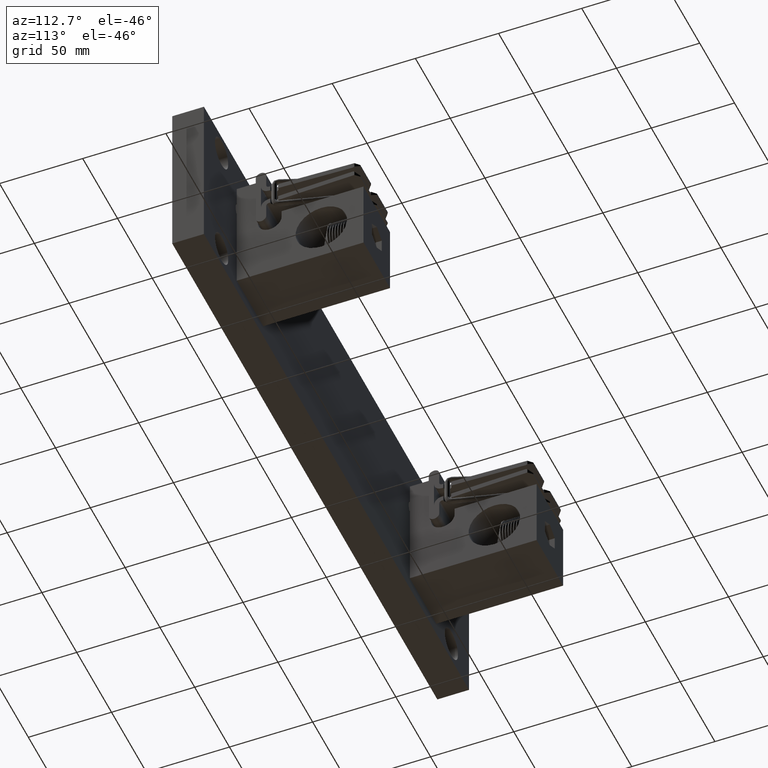
[diagram: clean part render]
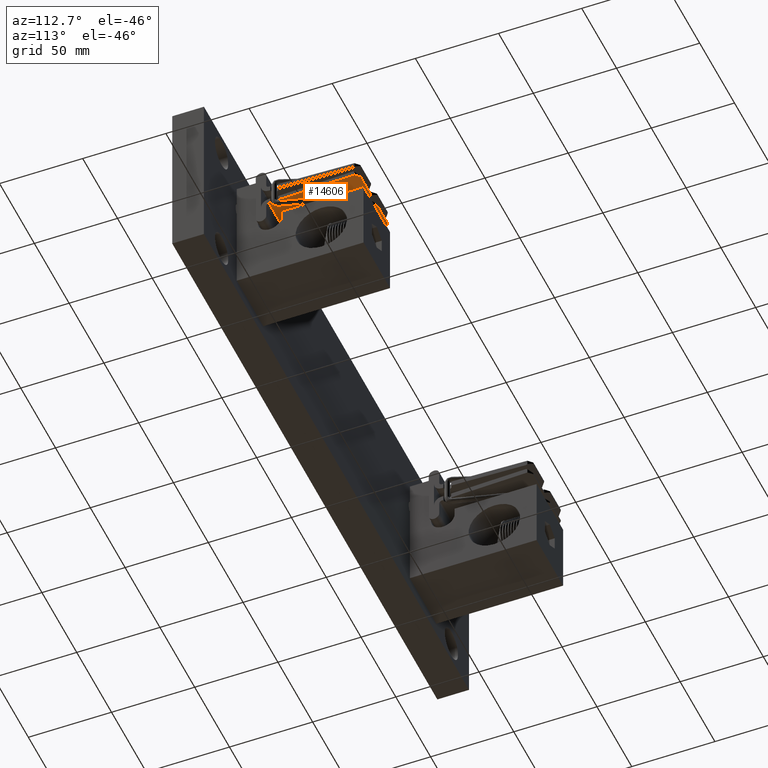
[diagram: same view with one face highlighted and labeled with its STEP entity id]
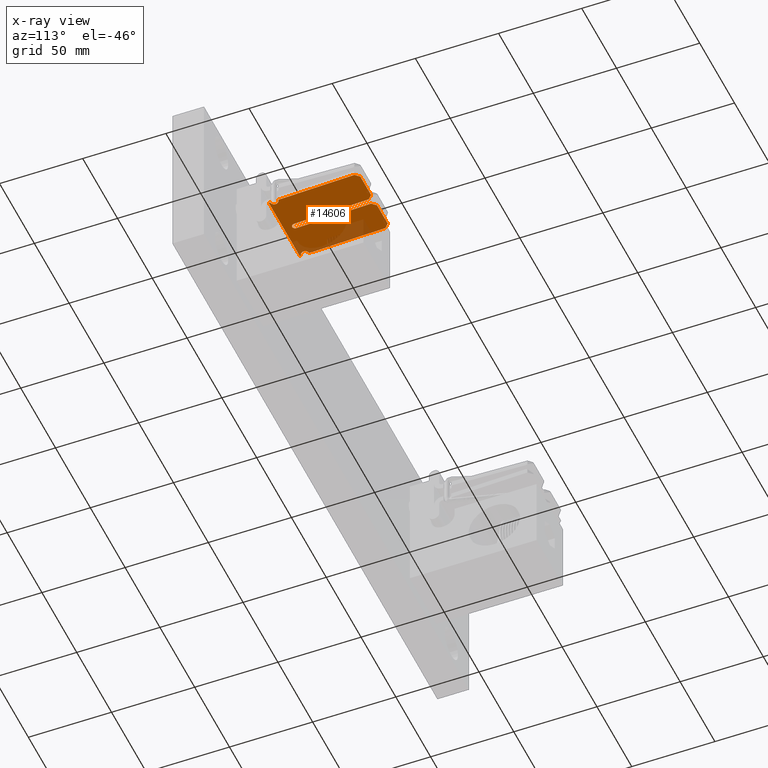
[diagram: x-ray of the same camera — body ghosted, the highlighted face saturated]
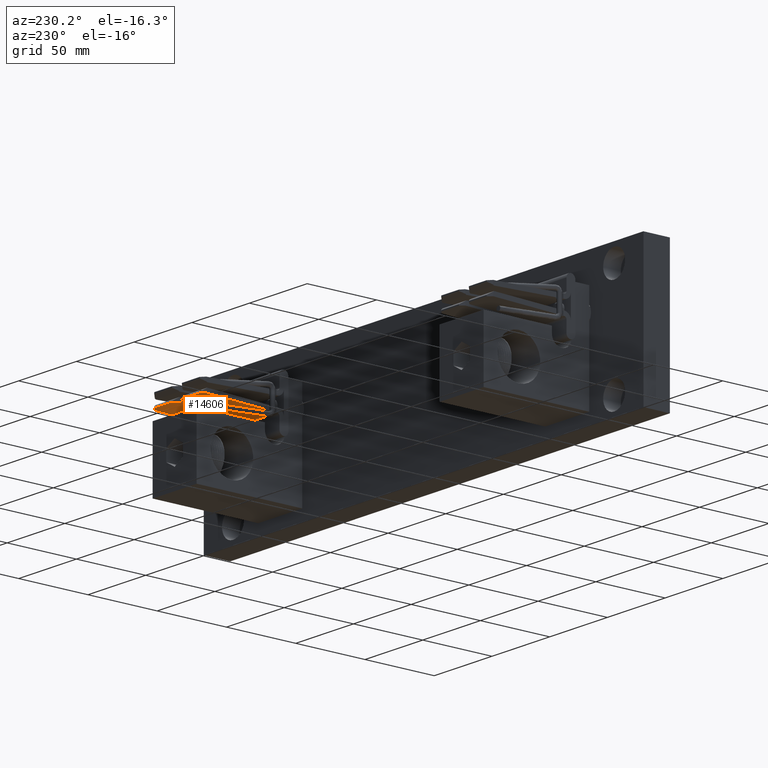
[diagram: same view with one face highlighted and labeled with its STEP entity id]
A machine part, auxiliary view. The second image highlights one B-rep face of the part: STEP entity #14606.
The next image is the same camera in x-ray: the body ghosted, the highlighted face saturated — about 14% of this face is hidden behind the body in this view.
A second angle (auxiliary view) of the same face is appended — the face is thin or edge-on in the first view.
In plain terms, the highlighted planar face has unit normal (0, -0.0353, 0.9994).
Its self-contained STEP definition (entity closure, byte-faithful):
#91 = CARTESIAN_POINT ( 'NONE',  ( 8.915000000000000900, 2.435000000000000100, -0.1820390935949554900 ) ) ;
#249 = CARTESIAN_POINT ( 'NONE',  ( 10.66499999999999900, 0.5309999999999999200, -0.2492637983786739900 ) ) ;
#251 = VECTOR ( 'NONE', #339, 39.37007874015748100 ) ;
#322 = CARTESIAN_POINT ( 'NONE',  ( 9.730957987920044500, 2.325042012079955500, -0.1859213904838928600 ) ) ;
#339 = DIRECTION ( 'NONE',  ( 1.232510108407271800E-016, 0.9993772867383173800, 0.03528510665364335800 ) ) ;
#348 = LINE ( 'NONE', #19431, #9925 ) ;
#374 = VECTOR ( 'NONE', #5624, 39.37007874015748100 ) ;
#898 = CARTESIAN_POINT ( 'NONE',  ( 9.721000000000000100, 0.5659999999999998400, -0.2480280501289732500 ) ) ;
#1201 = VERTEX_POINT ( 'NONE', #15070 ) ;
#1233 = ORIENTED_EDGE ( 'NONE', *, *, #28653, .T. ) ;
#1432 = DIRECTION ( 'NONE',  ( -1.000000000000000000, -0.0000000000000000000, -0.0000000000000000000 ) ) ;
#1539 = DIRECTION ( 'NONE',  ( 1.232510108407271800E-016, -0.9993772867383173800, -0.03528510665364335800 ) ) ;
#1713 = CARTESIAN_POINT ( 'NONE',  ( 9.859000000000000000, 1.317295073958034900, -0.2215020051960474000 ) ) ;
#1815 = LINE ( 'NONE', #322, #25367 ) ;
#2115 = CARTESIAN_POINT ( 'NONE',  ( 9.721000000000000100, 1.682704926041965300, -0.2086004456207299100 ) ) ;
#2417 = VERTEX_POINT ( 'NONE', #24184 ) ;
#2496 = EDGE_CURVE ( 'NONE', #20857, #13186, #26738, .T. ) ;
#2908 = ORIENTED_EDGE ( 'NONE', *, *, #25842, .T. ) ;
#3141 = EDGE_CURVE ( 'NONE', #9923, #5137, #11968, .T. ) ;
#3354 = DIRECTION ( 'NONE',  ( 0.0000000000000000000, -0.03528510665364335100, 0.9993772867383173800 ) ) ;
#3364 = VECTOR ( 'NONE', #22917, 39.37007874015748900 ) ;
#3431 = EDGE_CURVE ( 'NONE', #9980, #7583, #10923, .T. ) ;
#3503 = VERTEX_POINT ( 'NONE', #19504 ) ;
#4014 = CARTESIAN_POINT ( 'NONE',  ( 10.05930657065706600, 1.392942478079820300, -0.2188311152749646300 ) ) ;
#4080 = LINE ( 'NONE', #15090, #21317 ) ;
#4096 = LINE ( 'NONE', #5086, #3364 ) ;
#4123 = VECTOR ( 'NONE', #26891, 39.37007874015748100 ) ;
#4207 = ORIENTED_EDGE ( 'NONE', *, *, #9919, .T. ) ;
#4304 = AXIS2_PLACEMENT_3D ( 'NONE', #16828, #3354, #19125 ) ;
#4495 = LINE ( 'NONE', #8940, #4123 ) ;
#4814 = CARTESIAN_POINT ( 'NONE',  ( 9.859000000000000000, 2.435000000000000100, -0.1820390935949554900 ) ) ;
#4841 = VERTEX_POINT ( 'NONE', #23548 ) ;
#5086 = CARTESIAN_POINT ( 'NONE',  ( 10.66499999999999900, 2.435000000000000100, -0.1820390935949554900 ) ) ;
#5137 = VERTEX_POINT ( 'NONE', #26261 ) ;
#5397 = CARTESIAN_POINT ( 'NONE',  ( 10.67286734575641600, 2.327132654243585700, -0.1858475759869084300 ) ) ;
#5408 = LINE ( 'NONE', #7905, #374 ) ;
#5624 = DIRECTION ( 'NONE',  ( -1.000000000000000000, -0.0000000000000000000, -0.0000000000000000000 ) ) ;
#5923 = CARTESIAN_POINT ( 'NONE',  ( 8.915000000000000900, 0.5309999999999999200, -0.2492637983786739900 ) ) ;
#5952 =( BOUNDED_CURVE ( )  B_SPLINE_CURVE ( 3, ( #18132, #17840, #6938, #22609 ),
 .UNSPECIFIED., .F., .T. ) 
 B_SPLINE_CURVE_WITH_KNOTS ( ( 4, 4 ),
 ( 0.3610990432154277400, 2.780493610374366000 ),
 .UNSPECIFIED. ) 
 CURVE ( )  GEOMETRIC_REPRESENTATION_ITEM ( )  RATIONAL_B_SPLINE_CURVE ( ( 1.000000000000000000, 0.5688684075780841000, 0.5688684075780841000, 1.000000000000000000 ) ) 
 REPRESENTATION_ITEM ( '' )  );
#6118 = ORIENTED_EDGE ( 'NONE', *, *, #8507, .T. ) ;
#6373 = EDGE_CURVE ( 'NONE', #1201, #2417, #1815, .T. ) ;
#6938 = CARTESIAN_POINT ( 'NONE',  ( 9.520693429342934200, 1.392942478079820500, -0.2188311152749646500 ) ) ;
#7103 = CARTESIAN_POINT ( 'NONE',  ( 10.66499999999999900, 0.3429999999999995800, -0.2559015318342092700 ) ) ;
#7240 = LINE ( 'NONE', #91, #20904 ) ;
#7583 = VERTEX_POINT ( 'NONE', #26361 ) ;
#7760 = VECTOR ( 'NONE', #7776, 39.37007874015748100 ) ;
#7776 = DIRECTION ( 'NONE',  ( 1.232510108407271800E-016, 0.9993772867383173800, 0.03528510665364335800 ) ) ;
#7822 = VERTEX_POINT ( 'NONE', #19969 ) ;
#7905 = CARTESIAN_POINT ( 'NONE',  ( 10.66499999999999900, 2.435000000000000100, -0.1820390935949554900 ) ) ;
#7960 = ORIENTED_EDGE ( 'NONE', *, *, #18404, .T. ) ;
#8020 = VECTOR ( 'NONE', #19040, 39.37007874015748900 ) ;
#8209 =( BOUNDED_CURVE ( )  B_SPLINE_CURVE ( 3, ( #1713, #4014, #22001, #8598 ),
 .UNSPECIFIED., .F., .T. ) 
 B_SPLINE_CURVE_WITH_KNOTS ( ( 4, 4 ),
 ( 3.502691696805220600, 5.922086263964159200 ),
 .UNSPECIFIED. ) 
 CURVE ( )  GEOMETRIC_REPRESENTATION_ITEM ( )  RATIONAL_B_SPLINE_CURVE ( ( 1.000000000000000000, 0.5688684075780839900, 0.5688684075780839900, 1.000000000000000000 ) ) 
 REPRESENTATION_ITEM ( '' )  );
#8507 = EDGE_CURVE ( 'NONE', #7822, #25895, #7240, .T. ) ;
#8598 = CARTESIAN_POINT ( 'NONE',  ( 9.859000000000000000, 1.682704926041965500, -0.2086004456207299400 ) ) ;
#8940 = CARTESIAN_POINT ( 'NONE',  ( 9.721000000000000100, 2.435000000000000100, -0.1820390935949554900 ) ) ;
#9519 = EDGE_CURVE ( 'NONE', #25895, #18630, #27535, .T. ) ;
#9598 = EDGE_CURVE ( 'NONE', #25338, #13186, #22167, .T. ) ;
#9801 = ORIENTED_EDGE ( 'NONE', *, *, #6373, .T. ) ;
#9833 = VERTEX_POINT ( 'NONE', #24638 ) ;
#9919 = EDGE_CURVE ( 'NONE', #5137, #14231, #27887, .T. ) ;
#9923 = VERTEX_POINT ( 'NONE', #898 ) ;
#9925 = VECTOR ( 'NONE', #10424, 39.37007874015748100 ) ;
#9980 = VERTEX_POINT ( 'NONE', #12291 ) ;
#10424 = DIRECTION ( 'NONE',  ( -1.000000000000000000, -0.0000000000000000000, -0.0000000000000000000 ) ) ;
#10536 = LINE ( 'NONE', #17907, #11222 ) ;
#10695 = VECTOR ( 'NONE', #25755, 39.37007874015748900 ) ;
#10888 = CARTESIAN_POINT ( 'NONE',  ( 8.915000000000000900, 0.5309999999999999200, -0.2492637983786739900 ) ) ;
#10923 = LINE ( 'NONE', #21566, #8020 ) ;
#11073 = ORIENTED_EDGE ( 'NONE', *, *, #13893, .T. ) ;
#11222 = VECTOR ( 'NONE', #26761, 39.37007874015748100 ) ;
#11263 = ORIENTED_EDGE ( 'NONE', *, *, #15824, .T. ) ;
#11968 =( BOUNDED_CURVE ( )  B_SPLINE_CURVE ( 3, ( #19506, #13238, #19885, #12564 ),
 .UNSPECIFIED., .F., .T. ) 
 B_SPLINE_CURVE_WITH_KNOTS ( ( 4, 4 ),
 ( 1.570796326794898600, 4.712388980384689700 ),
 .UNSPECIFIED. ) 
 CURVE ( )  GEOMETRIC_REPRESENTATION_ITEM ( )  RATIONAL_B_SPLINE_CURVE ( ( 1.000000000000000000, 0.3333333333333339800, 0.3333333333333339800, 1.000000000000000000 ) ) 
 REPRESENTATION_ITEM ( '' )  );
#11987 = LINE ( 'NONE', #4814, #251 ) ;
#12176 = CARTESIAN_POINT ( 'NONE',  ( 9.859000000000000000, 2.435000000000000100, -0.1820390935949554900 ) ) ;
#12291 = CARTESIAN_POINT ( 'NONE',  ( 9.859000000000000000, 2.335000000000000400, -0.1855698028798146400 ) ) ;
#12564 = CARTESIAN_POINT ( 'NONE',  ( 9.859000000000000000, 0.5659999999999999500, -0.2480280501289732500 ) ) ;
#13186 = VERTEX_POINT ( 'NONE', #7103 ) ;
#13238 = CARTESIAN_POINT ( 'NONE',  ( 9.721000000000000100, 0.4280000000000004400, -0.2529004289420788700 ) ) ;
#13241 = CARTESIAN_POINT ( 'NONE',  ( 10.66499999999999900, 2.435000000000000100, -0.1820390935949554900 ) ) ;
#13264 = EDGE_CURVE ( 'NONE', #4841, #7583, #5408, .T. ) ;
#13576 = DIRECTION ( 'NONE',  ( -0.0000000000000000000, 0.9993772867383173800, 0.03528510665364335100 ) ) ;
#13893 = EDGE_CURVE ( 'NONE', #2417, #21235, #4080, .T. ) ;
#14088 = ORIENTED_EDGE ( 'NONE', *, *, #3141, .T. ) ;
#14231 = VERTEX_POINT ( 'NONE', #25840 ) ;
#14606 = ADVANCED_FACE ( 'NONE', ( #24601 ), #21268, .F. ) ;
#15070 = CARTESIAN_POINT ( 'NONE',  ( 9.621000000000000400, 2.435000000000000100, -0.1820390935949554900 ) ) ;
#15090 = CARTESIAN_POINT ( 'NONE',  ( 9.721000000000000100, 2.435000000000000100, -0.1820390935949554900 ) ) ;
#15702 = CARTESIAN_POINT ( 'NONE',  ( 8.915000000000000900, 0.3429999999999995800, -0.2559015318342092700 ) ) ;
#15812 = VERTEX_POINT ( 'NONE', #16662 ) ;
#15824 = EDGE_CURVE ( 'NONE', #4841, #21211, #15970, .T. ) ;
#15970 = LINE ( 'NONE', #5397, #27213 ) ;
#16056 = ORIENTED_EDGE ( 'NONE', *, *, #26883, .T. ) ;
#16286 = CARTESIAN_POINT ( 'NONE',  ( 10.66499999999999900, 0.3107770382808204300, -0.2570392309354848600 ) ) ;
#16662 = CARTESIAN_POINT ( 'NONE',  ( 9.015000000000000600, 2.435000000000000100, -0.1820390935949554900 ) ) ;
#16828 = CARTESIAN_POINT ( 'NONE',  ( 10.66499999999999900, 2.435000000000000100, -0.1820390935949554900 ) ) ;
#17840 = CARTESIAN_POINT ( 'NONE',  ( 9.520693429342934200, 1.607057521920179900, -0.2112713355418127700 ) ) ;
#17871 = CARTESIAN_POINT ( 'NONE',  ( 10.66499999999999900, 0.3429999999999995800, -0.2559015318342092700 ) ) ;
#17907 = CARTESIAN_POINT ( 'NONE',  ( 9.015000000000000600, 2.435000000000000100, -0.1820390935949554900 ) ) ;
#17968 = ORIENTED_EDGE ( 'NONE', *, *, #9519, .T. ) ;
#18132 = CARTESIAN_POINT ( 'NONE',  ( 9.721000000000000100, 1.682704926041965300, -0.2086004456207299100 ) ) ;
#18160 = CARTESIAN_POINT ( 'NONE',  ( 10.47700000000000000, 0.3429999999999997500, -0.2559015318342091600 ) ) ;
#18200 = CARTESIAN_POINT ( 'NONE',  ( 10.66499999999999900, 0.5309999999999999200, -0.2492637983786739900 ) ) ;
#18221 = EDGE_LOOP ( 'NONE', ( #11073, #26420, #2908, #14088, #4207, #24464, #7960, #21351, #21833, #11263, #25484, #25967, #21346, #18312, #6118, #17968, #1233, #16056, #22327, #9801 ) ) ;
#18312 = ORIENTED_EDGE ( 'NONE', *, *, #21882, .T. ) ;
#18369 = DIRECTION ( 'NONE',  ( 0.7068865159459675200, -0.7068865159459636300, -0.02495810785192158900 ) ) ;
#18404 = EDGE_CURVE ( 'NONE', #20834, #9980, #11987, .T. ) ;
#18630 = VERTEX_POINT ( 'NONE', #5923 ) ;
#19040 = DIRECTION ( 'NONE',  ( 0.7068865159459646300, 0.7068865159459665200, 0.02495810785192169300 ) ) ;
#19125 = DIRECTION ( 'NONE',  ( 0.0000000000000000000, -0.9993772867383173800, -0.03528510665364335100 ) ) ;
#19431 = CARTESIAN_POINT ( 'NONE',  ( 10.66499999999999900, 0.3107770382808204300, -0.2570392309354848600 ) ) ;
#19504 = CARTESIAN_POINT ( 'NONE',  ( 8.915000000000000900, 2.334999999999999500, -0.1855698028798146700 ) ) ;
#19506 = CARTESIAN_POINT ( 'NONE',  ( 9.721000000000000100, 0.5659999999999998400, -0.2480280501289732500 ) ) ;
#19885 = CARTESIAN_POINT ( 'NONE',  ( 9.859000000000000000, 0.4280000000000006000, -0.2529004289420788700 ) ) ;
#19969 = CARTESIAN_POINT ( 'NONE',  ( 8.915000000000000900, 0.3107770382808204300, -0.2570392309354848600 ) ) ;
#20751 = VECTOR ( 'NONE', #24049, 39.37007874015748900 ) ;
#20834 = VERTEX_POINT ( 'NONE', #27260 ) ;
#20857 = VERTEX_POINT ( 'NONE', #249 ) ;
#20904 = VECTOR ( 'NONE', #13576, 39.37007874015748900 ) ;
#21194 = DIRECTION ( 'NONE',  ( 0.7068865159459675200, -0.7068865159459636300, -0.02495810785192159300 ) ) ;
#21211 = VERTEX_POINT ( 'NONE', #29226 ) ;
#21235 = VERTEX_POINT ( 'NONE', #2115 ) ;
#21268 = PLANE ( 'NONE',  #4304 ) ;
#21317 = VECTOR ( 'NONE', #1539, 39.37007874015748100 ) ;
#21346 = ORIENTED_EDGE ( 'NONE', *, *, #9598, .F. ) ;
#21351 = ORIENTED_EDGE ( 'NONE', *, *, #3431, .T. ) ;
#21566 = CARTESIAN_POINT ( 'NONE',  ( 9.958999999999999600, 2.435000000000000100, -0.1820390935949554900 ) ) ;
#21833 = ORIENTED_EDGE ( 'NONE', *, *, #13264, .F. ) ;
#21882 = EDGE_CURVE ( 'NONE', #25338, #7822, #348, .T. ) ;
#22001 = CARTESIAN_POINT ( 'NONE',  ( 10.05930657065706600, 1.607057521920179900, -0.2112713355418127400 ) ) ;
#22039 = CARTESIAN_POINT ( 'NONE',  ( 9.103000000000001500, 0.3429999999999997500, -0.2559015318342091600 ) ) ;
#22167 = LINE ( 'NONE', #13241, #20751 ) ;
#22267 = CARTESIAN_POINT ( 'NONE',  ( 8.915000000000000900, 2.435000000000000100, -0.1820390935949554900 ) ) ;
#22327 = ORIENTED_EDGE ( 'NONE', *, *, #24802, .F. ) ;
#22609 = CARTESIAN_POINT ( 'NONE',  ( 9.721000000000000100, 1.317295073958034700, -0.2215020051960474000 ) ) ;
#22917 = DIRECTION ( 'NONE',  ( -0.0000000000000000000, 0.9993772867383173800, 0.03528510665364335100 ) ) ;
#23039 = LINE ( 'NONE', #28426, #26263 ) ;
#23140 = EDGE_CURVE ( 'NONE', #14231, #20834, #8209, .T. ) ;
#23548 = CARTESIAN_POINT ( 'NONE',  ( 10.56500000000000100, 2.435000000000000100, -0.1820390935949555100 ) ) ;
#24049 = DIRECTION ( 'NONE',  ( -0.0000000000000000000, 0.9993772867383173800, 0.03528510665364335100 ) ) ;
#24184 = CARTESIAN_POINT ( 'NONE',  ( 9.721000000000000100, 2.335000000000000000, -0.1855698028798146700 ) ) ;
#24292 = CARTESIAN_POINT ( 'NONE',  ( 8.915000000000000900, 0.3429999999999995800, -0.2559015318342092700 ) ) ;
#24464 = ORIENTED_EDGE ( 'NONE', *, *, #23140, .T. ) ;
#24601 = FACE_OUTER_BOUND ( 'NONE', #18221, .T. ) ;
#24638 = CARTESIAN_POINT ( 'NONE',  ( 9.721000000000000100, 1.317295073958034700, -0.2215020051960474000 ) ) ;
#24802 = EDGE_CURVE ( 'NONE', #1201, #15812, #23039, .T. ) ;
#25338 = VERTEX_POINT ( 'NONE', #16286 ) ;
#25364 = CARTESIAN_POINT ( 'NONE',  ( 10.47700000000000000, 0.5309999999999998100, -0.2492637983786739900 ) ) ;
#25367 = VECTOR ( 'NONE', #18369, 39.37007874015748900 ) ;
#25484 = ORIENTED_EDGE ( 'NONE', *, *, #27530, .F. ) ;
#25755 = DIRECTION ( 'NONE',  ( -0.0000000000000000000, 0.9993772867383173800, 0.03528510665364335100 ) ) ;
#25840 = CARTESIAN_POINT ( 'NONE',  ( 9.859000000000000000, 1.317295073958034900, -0.2215020051960474000 ) ) ;
#25842 = EDGE_CURVE ( 'NONE', #9833, #9923, #4495, .T. ) ;
#25895 = VERTEX_POINT ( 'NONE', #15702 ) ;
#25967 = ORIENTED_EDGE ( 'NONE', *, *, #2496, .T. ) ;
#26261 = CARTESIAN_POINT ( 'NONE',  ( 9.859000000000000000, 0.5659999999999999500, -0.2480280501289732500 ) ) ;
#26263 = VECTOR ( 'NONE', #1432, 39.37007874015748100 ) ;
#26361 = CARTESIAN_POINT ( 'NONE',  ( 9.958999999999999600, 2.435000000000000100, -0.1820390935949554900 ) ) ;
#26420 = ORIENTED_EDGE ( 'NONE', *, *, #28034, .T. ) ;
#26738 =( BOUNDED_CURVE ( )  B_SPLINE_CURVE ( 3, ( #18200, #25364, #18160, #17871 ),
 .UNSPECIFIED., .F., .T. ) 
 B_SPLINE_CURVE_WITH_KNOTS ( ( 4, 4 ),
 ( 0.0000000000000000000, 3.141592653589793100 ),
 .UNSPECIFIED. ) 
 CURVE ( )  GEOMETRIC_REPRESENTATION_ITEM ( )  RATIONAL_B_SPLINE_CURVE ( ( 1.000000000000000000, 0.3333333333333333700, 0.3333333333333333700, 1.000000000000000000 ) ) 
 REPRESENTATION_ITEM ( '' )  );
#26761 = DIRECTION ( 'NONE',  ( 0.7068865159459646300, 0.7068865159459666300, 0.02495810785192169700 ) ) ;
#26883 = EDGE_CURVE ( 'NONE', #3503, #15812, #10536, .T. ) ;
#26891 = DIRECTION ( 'NONE',  ( 1.232510108407271800E-016, -0.9993772867383173800, -0.03528510665364335800 ) ) ;
#27213 = VECTOR ( 'NONE', #21194, 39.37007874015748900 ) ;
#27260 = CARTESIAN_POINT ( 'NONE',  ( 9.859000000000000000, 1.682704926041965500, -0.2086004456207299400 ) ) ;
#27530 = EDGE_CURVE ( 'NONE', #20857, #21211, #4096, .T. ) ;
#27535 =( BOUNDED_CURVE ( )  B_SPLINE_CURVE ( 3, ( #24292, #22039, #28743, #10888 ),
 .UNSPECIFIED., .F., .T. ) 
 B_SPLINE_CURVE_WITH_KNOTS ( ( 4, 4 ),
 ( 3.141592653589793100, 6.283185307179586200 ),
 .UNSPECIFIED. ) 
 CURVE ( )  GEOMETRIC_REPRESENTATION_ITEM ( )  RATIONAL_B_SPLINE_CURVE ( ( 1.000000000000000000, 0.3333333333333333700, 0.3333333333333333700, 1.000000000000000000 ) ) 
 REPRESENTATION_ITEM ( '' )  );
#27881 = LINE ( 'NONE', #22267, #10695 ) ;
#27887 = LINE ( 'NONE', #12176, #7760 ) ;
#28034 = EDGE_CURVE ( 'NONE', #21235, #9833, #5952, .T. ) ;
#28426 = CARTESIAN_POINT ( 'NONE',  ( 10.66499999999999900, 2.435000000000000100, -0.1820390935949554900 ) ) ;
#28653 = EDGE_CURVE ( 'NONE', #18630, #3503, #27881, .T. ) ;
#28743 = CARTESIAN_POINT ( 'NONE',  ( 9.103000000000001500, 0.5309999999999998100, -0.2492637983786739900 ) ) ;
#29226 = CARTESIAN_POINT ( 'NONE',  ( 10.66499999999999900, 2.335000000000000900, -0.1855698028798146700 ) ) ;